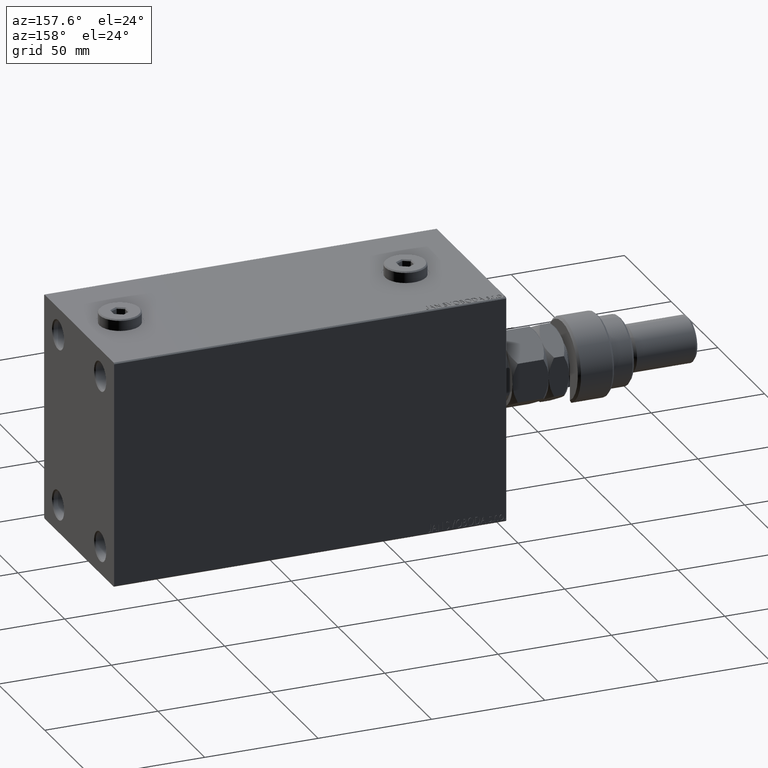
[diagram: clean part render]
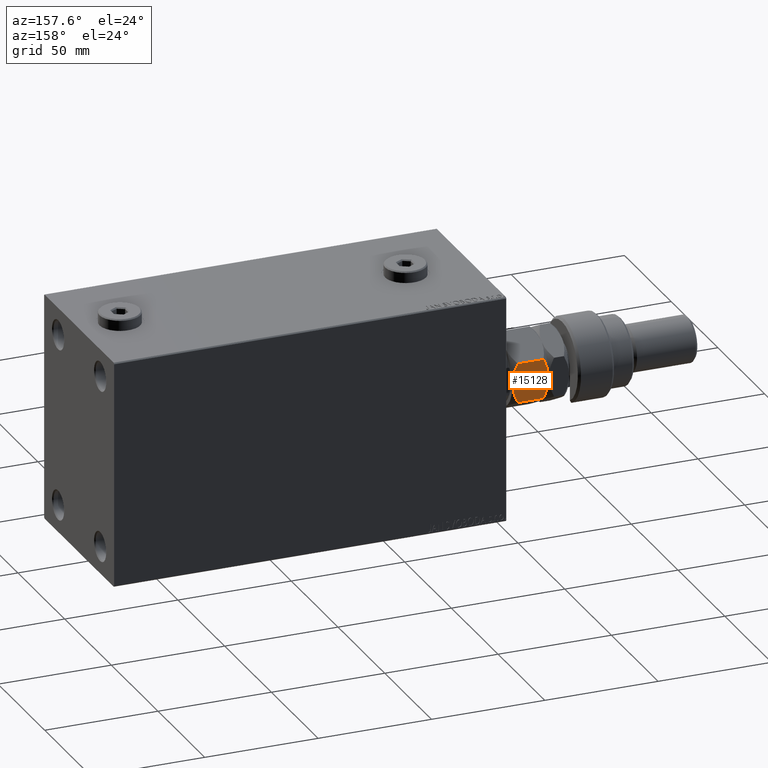
[diagram: same view with one face highlighted and labeled with its STEP entity id]
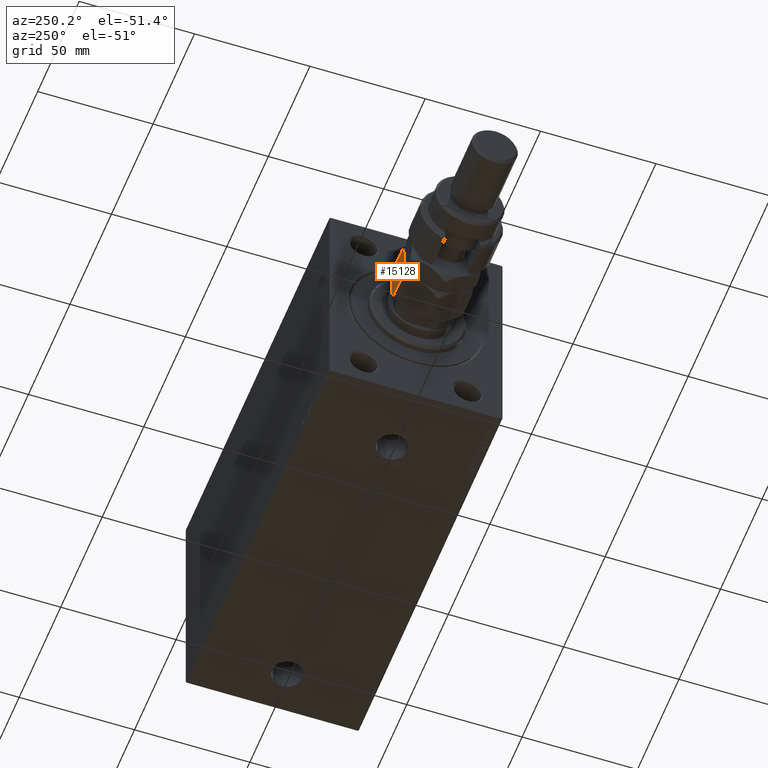
[diagram: same view with one face highlighted and labeled with its STEP entity id]
A machine part, auxiliary view. The second image highlights one B-rep face of the part: STEP entity #15128.
A second angle (auxiliary view) of the same face is appended — the face is thin or edge-on in the first view.
In plain terms, the highlighted planar face has unit normal (0, -1, 0).
Its self-contained STEP definition (entity closure, byte-faithful):
#134 = CARTESIAN_POINT ( 'NONE',  ( -7.499999999999991118, 12.99038105676658184, 16.00000000000000000 ) ) ;
#327 = CARTESIAN_POINT ( 'NONE',  ( -1.174746544192158293, 16.64226784216984356, 1.642267842169780501 ) ) ;
#1583 = B_SPLINE_CURVE_WITH_KNOTS ( 'NONE', 3,
 ( #6522, #17355, #21513, #36217, #2595, #13891 ),
 .UNSPECIFIED., .F., .F.,
 ( 4, 2, 4 ),
 ( 0.008977392552884438590, 0.01343452311421656012, 0.01789165367554868338 ),
 .UNSPECIFIED. ) ;
#1863 = ORIENTED_EDGE ( 'NONE', *, *, #33526, .F. ) ;
#2595 = CARTESIAN_POINT ( 'NONE',  ( -13.82525345580783771, 9.338494271363320109, 14.35773215783021683 ) ) ;
#4067 = CARTESIAN_POINT ( 'NONE',  ( 3.803331551779305683E-16, 17.32050807568877104, 13.67949192431124317 ) ) ;
#4906 = VERTEX_POINT ( 'NONE', #34337 ) ;
#5435 = ORIENTED_EDGE ( 'NONE', *, *, #37878, .F. ) ;
#6522 = CARTESIAN_POINT ( 'NONE',  ( -7.499999999999991118, 12.99038105676658184, 16.00000000000000000 ) ) ;
#6760 = CARTESIAN_POINT ( 'NONE',  ( -2.378834511187503331, 15.94708733029709435, 14.93551393225599710 ) ) ;
#7648 = PLANE ( 'NONE',  #25189 ) ;
#8017 = CARTESIAN_POINT ( 'NONE',  ( -15.00000000000000000, 8.660254037844392627, 16.00000000000000000 ) ) ;
#9386 = VERTEX_POINT ( 'NONE', #19655 ) ;
#10321 = EDGE_CURVE ( 'NONE', #9386, #23991, #41517, .T. ) ;
#11001 = DIRECTION ( 'NONE',  ( -0.000000000000000000, -0.000000000000000000, -1.000000000000000000 ) ) ;
#11416 = CARTESIAN_POINT ( 'NONE',  ( -4.247772349543481596, 14.86805556622359070, 15.55242859148697043 ) ) ;
#11715 = CARTESIAN_POINT ( 'NONE',  ( -7.499999999999992895, 12.99038105676658361, 0.000000000000000000 ) ) ;
#12339 = CARTESIAN_POINT ( 'NONE',  ( -7.499999999999992895, 12.99038105676658361, 0.000000000000000000 ) ) ;
#13260 = EDGE_LOOP ( 'NONE', ( #40927, #5435, #1863, #25700, #19687, #33908 ) ) ;
#13520 = VERTEX_POINT ( 'NONE', #21035 ) ;
#13891 = CARTESIAN_POINT ( 'NONE',  ( -15.00000000000000000, 8.660254037844392627, 13.67949192431123429 ) ) ;
#15128 = ADVANCED_FACE ( 'NONE', ( #30471 ), #7648, .F. ) ;
#15172 = CARTESIAN_POINT ( 'NONE',  ( -13.82389157469336283, 9.339280553791375894, 1.641481559741795548 ) ) ;
#15658 = CARTESIAN_POINT ( 'NONE',  ( -8.156876182308247181, 12.61113341608666083, 3.106916850528774038E-15 ) ) ;
#16609 = VERTEX_POINT ( 'NONE', #26697 ) ;
#17158 = VERTEX_POINT ( 'NONE', #40386 ) ;
#17355 = CARTESIAN_POINT ( 'NONE',  ( -8.804550678576905653, 12.23719837131869781, 16.00000000000000000 ) ) ;
#17871 = EDGE_CURVE ( 'NONE', #17158, #13520, #44632, .T. ) ;
#19059 = CARTESIAN_POINT ( 'NONE',  ( -4.881674457977373649, 14.50207201327941675, 15.71619733805371055 ) ) ;
#19118 = CARTESIAN_POINT ( 'NONE',  ( -8.823580389329299223, 12.22621156269320863, 0.05953537397470442388 ) ) ;
#19655 = CARTESIAN_POINT ( 'NONE',  ( -15.00000000000000000, 8.660254037844394404, 2.320508075688769711 ) ) ;
#19687 = ORIENTED_EDGE ( 'NONE', *, *, #17871, .T. ) ;
#19739 = CARTESIAN_POINT ( 'NONE',  ( -4.913081180497406386, 14.48393933357811214, 0.2303299219392169472 ) ) ;
#21035 = CARTESIAN_POINT ( 'NONE',  ( 7.621669386706803087E-17, 17.32050807568877104, 2.320508075688761718 ) ) ;
#21513 = CARTESIAN_POINT ( 'NONE',  ( -10.08691881950258740, 11.49682277995505864, 15.76967007806078236 ) ) ;
#23003 = DIRECTION ( 'NONE',  ( -0.000000000000000000, -0.000000000000000000, -1.000000000000000000 ) ) ;
#23273 = CARTESIAN_POINT ( 'NONE',  ( -12.62116548881249400, 10.03367478323607109, 1.064486067744009556 ) ) ;
#23368 = CARTESIAN_POINT ( 'NONE',  ( 0.000000000000000000, 17.32050807568877104, 16.00000000000000000 ) ) ;
#23620 = DIRECTION ( 'NONE',  ( 0.8660254037844389297, 0.4999999999999995559, 0.000000000000000000 ) ) ;
#23991 = VERTEX_POINT ( 'NONE', #38885 ) ;
#25189 = AXIS2_PLACEMENT_3D ( 'NONE', #23368, #41523, #23620 ) ;
#25700 = ORIENTED_EDGE ( 'NONE', *, *, #46735, .F. ) ;
#26697 = CARTESIAN_POINT ( 'NONE',  ( -7.499999999999991118, 12.99038105676658184, 16.00000000000000000 ) ) ;
#26829 = VECTOR ( 'NONE', #11001, 1000.000000000000000 ) ;
#29174 = CARTESIAN_POINT ( 'NONE',  ( 0.000000000000000000, 17.32050807568877104, 16.00000000000000000 ) ) ;
#30073 = CARTESIAN_POINT ( 'NONE',  ( -1.176108425306640504, 16.64148155974180199, 14.35851844025821578 ) ) ;
#30471 = FACE_OUTER_BOUND ( 'NONE', #13260, .T. ) ;
#30502 = CARTESIAN_POINT ( 'NONE',  ( 7.621669386706803087E-17, 17.32050807568877104, 2.320508075688761718 ) ) ;
#30652 = VECTOR ( 'NONE', #23003, 1000.000000000000000 ) ;
#30867 = CARTESIAN_POINT ( 'NONE',  ( -15.00000000000000000, 8.660254037844394404, 2.320508075688769711 ) ) ;
#31230 = CARTESIAN_POINT ( 'NONE',  ( -2.383929548160348855, 15.94414570932928576, 1.060479031370877401 ) ) ;
#33412 = B_SPLINE_CURVE_WITH_KNOTS ( 'NONE', 3,
 ( #4067, #30073, #6760, #11416, #19059, #37431, #40379, #134 ),
 .UNSPECIFIED., .F., .F.,
 ( 4, 2, 2, 4 ),
 ( 2.544309033646407248E-07, 0.004488823491893900036, 0.006733108022389169313, 0.008977392552884438590 ),
 .UNSPECIFIED. ) ;
#33526 = EDGE_CURVE ( 'NONE', #16609, #4906, #1583, .T. ) ;
#33908 = ORIENTED_EDGE ( 'NONE', *, *, #42158, .F. ) ;
#33935 = CARTESIAN_POINT ( 'NONE',  ( -6.195449321423083688, 13.74356374221447297, 3.003578830963748213E-15 ) ) ;
#34055 = CARTESIAN_POINT ( 'NONE',  ( -10.11832554202262280, 11.47869010025375403, 0.2838026619462963862 ) ) ;
#34337 = CARTESIAN_POINT ( 'NONE',  ( -15.00000000000000000, 8.660254037844392627, 13.67949192431123429 ) ) ;
#36217 = CARTESIAN_POINT ( 'NONE',  ( -12.61607045183964715, 10.03661640420387435, 14.93952096862911816 ) ) ;
#37431 = CARTESIAN_POINT ( 'NONE',  ( -6.176419610670691895, 13.75455055083996747, 15.94046462602529957 ) ) ;
#37878 = EDGE_CURVE ( 'NONE', #4906, #9386, #38439, .T. ) ;
#38223 = CARTESIAN_POINT ( 'NONE',  ( -10.75222765045650597, 11.11270654730957119, 0.4475714085130295117 ) ) ;
#38439 = LINE ( 'NONE', #8017, #30652 ) ;
#38885 = CARTESIAN_POINT ( 'NONE',  ( -7.499999999999992895, 12.99038105676658361, 0.000000000000000000 ) ) ;
#40379 = CARTESIAN_POINT ( 'NONE',  ( -6.843123817691743938, 13.36962869744650995, 16.00000000000000355 ) ) ;
#40386 = CARTESIAN_POINT ( 'NONE',  ( 3.803331551779305683E-16, 17.32050807568877104, 13.67949192431124317 ) ) ;
#40927 = ORIENTED_EDGE ( 'NONE', *, *, #10321, .F. ) ;
#41517 = B_SPLINE_CURVE_WITH_KNOTS ( 'NONE', 3,
 ( #30867, #15172, #23273, #38223, #34055, #19118, #15658, #11715 ),
 .UNSPECIFIED., .F., .F.,
 ( 4, 2, 2, 4 ),
 ( 2.544309033652409006E-07, 0.004488823491893913914, 0.006733108022389184058, 0.008977392552884454202 ),
 .UNSPECIFIED. ) ;
#41523 = DIRECTION ( 'NONE',  ( 0.4999999999999995559, -0.8660254037844389297, 0.000000000000000000 ) ) ;
#42158 = EDGE_CURVE ( 'NONE', #23991, #13520, #46618, .T. ) ;
#44632 = LINE ( 'NONE', #29174, #26829 ) ;
#46618 = B_SPLINE_CURVE_WITH_KNOTS ( 'NONE', 3,
 ( #12339, #33935, #19739, #31230, #327, #30502 ),
 .UNSPECIFIED., .F., .F.,
 ( 4, 2, 4 ),
 ( 0.008977392552884454202, 0.01343452311421656706, 0.01789165367554867991 ),
 .UNSPECIFIED. ) ;
#46735 = EDGE_CURVE ( 'NONE', #17158, #16609, #33412, .T. ) ;